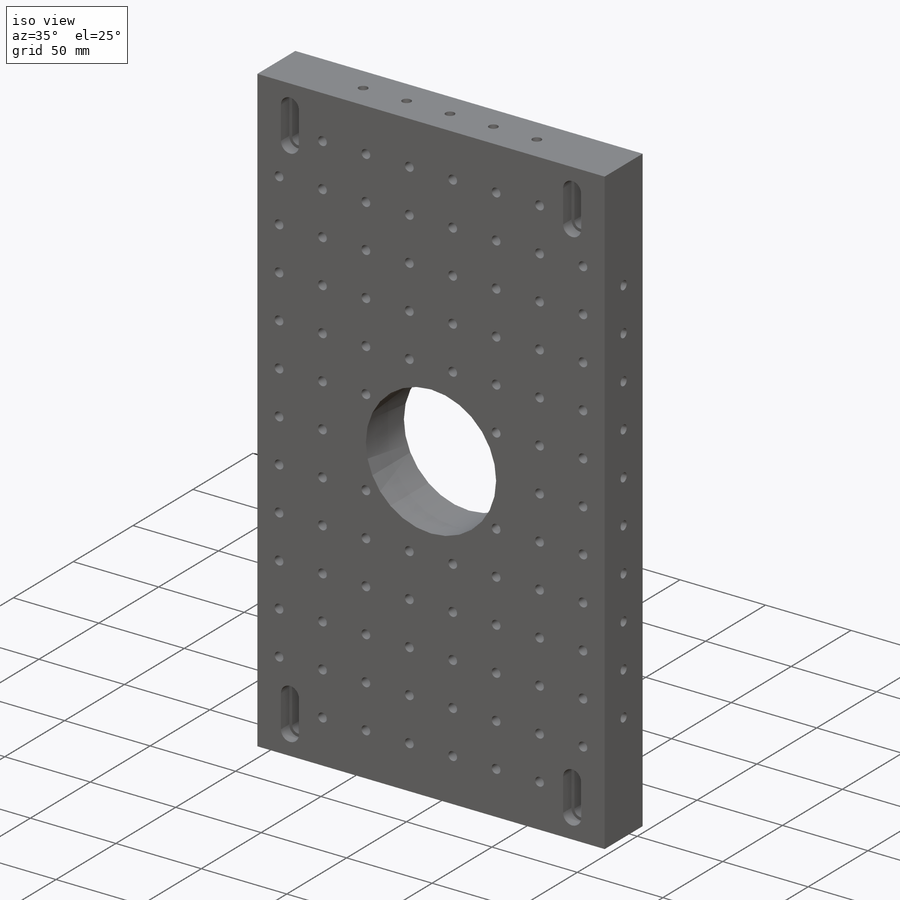
[diagram: iso view]
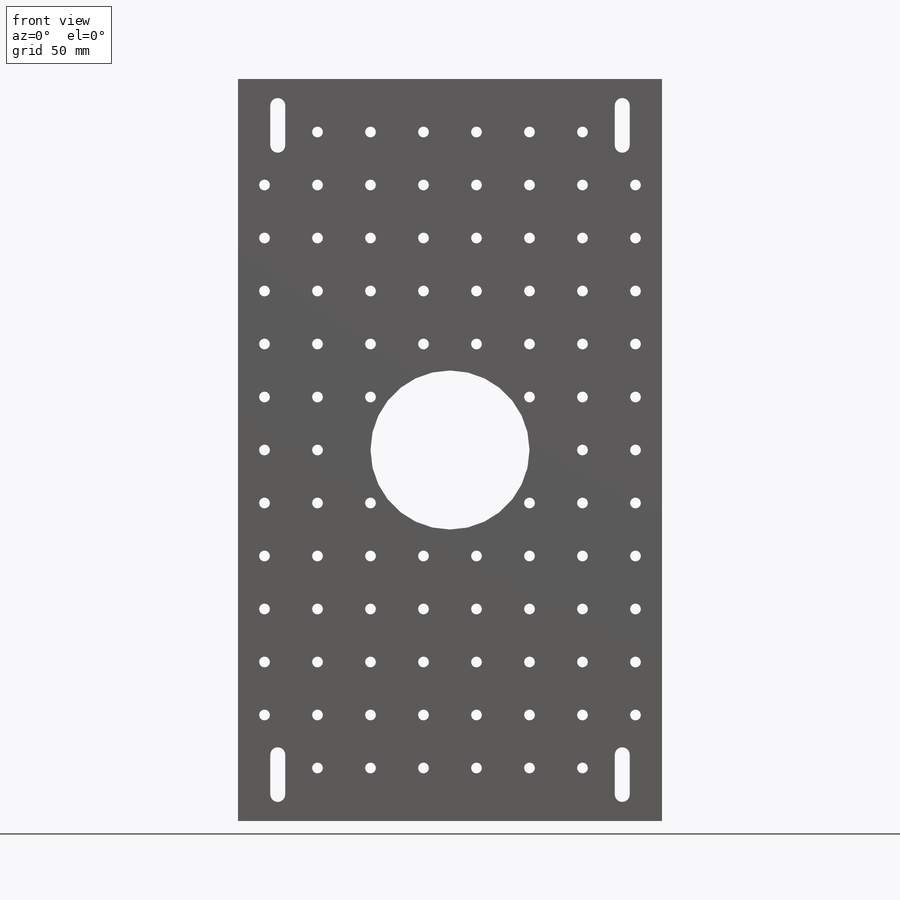
[diagram: front view]
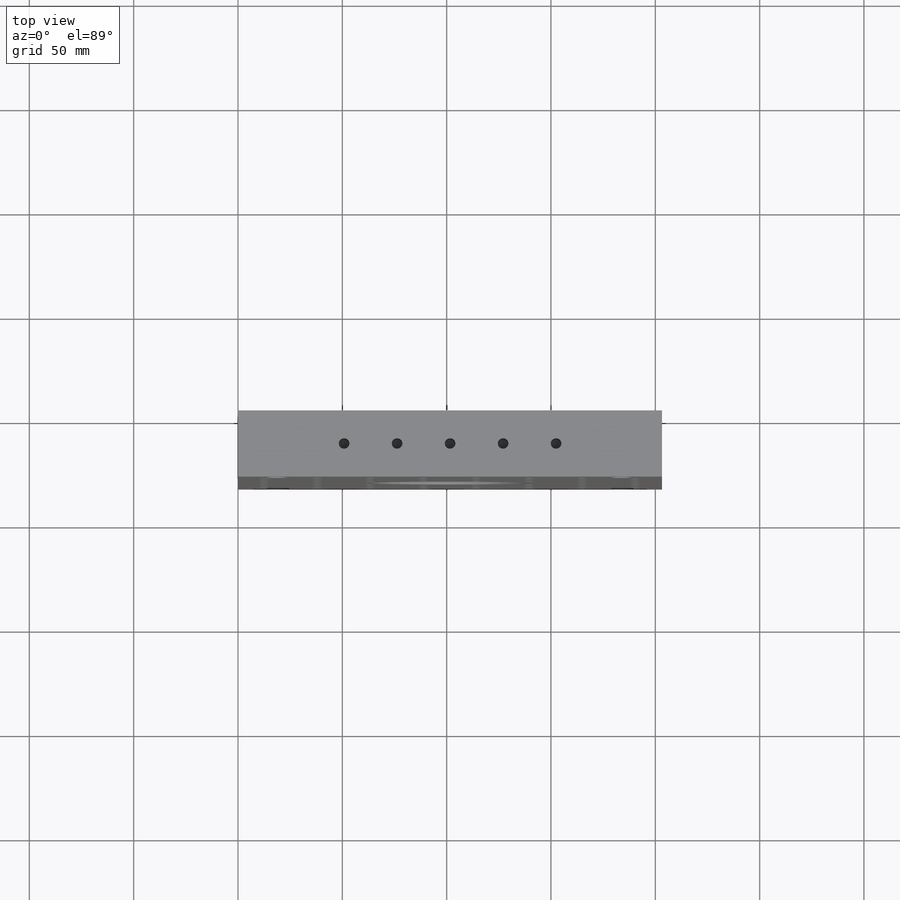
[diagram: top view]
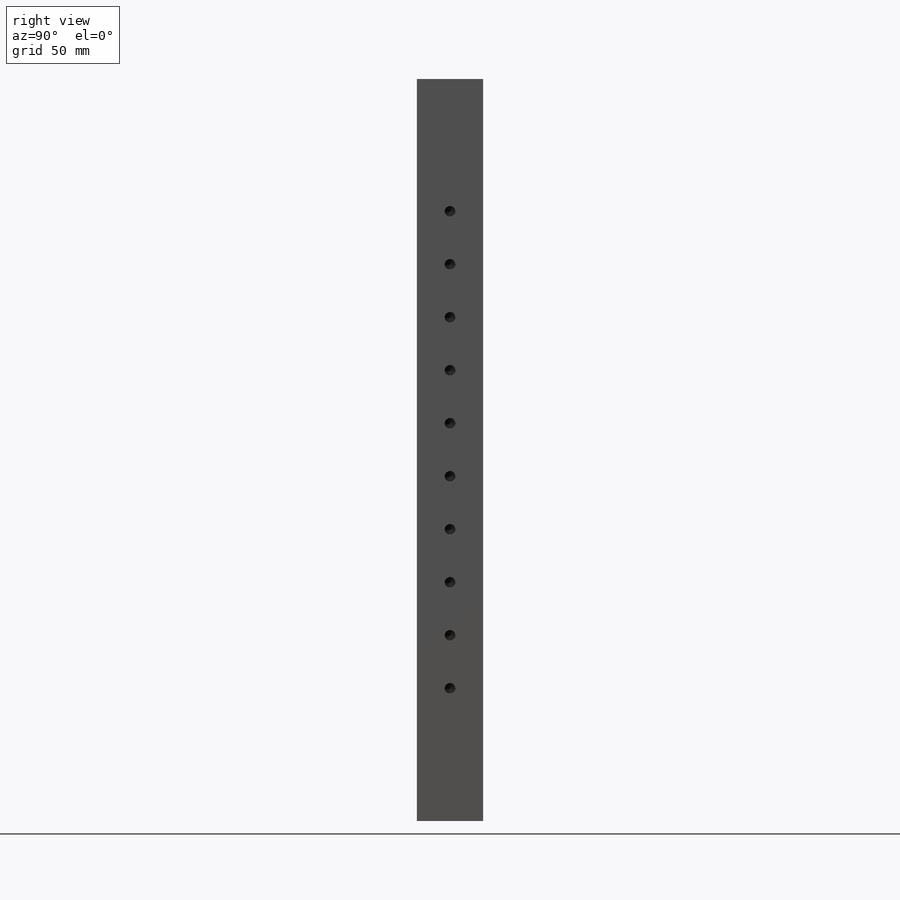
[diagram: right view]
SOLIDWORKS PART (.sldprt)
format: sldprt  version: not decoded by parser v0  size: 759,808 bytes
history: native  units: mm
features: sketch x14, pattern_linear x7, hole x5, thread x5, cut_revolve x2, material x1, extrude x1, cut_extrude x1 (+11 scaffold rows collapsed)
feature tree (47):
  scaffold x11  (default folders/planes/origin — collapsed)
  material  "Material <not specified>"
  sketch  "Sketch1"  dims[D1=25.4mm]
  extrude  "Boss-Extrude1"  Depth=31.75mm
  sketch  "Sketch2"  dims[D1=0.0mm]
  cut_extrude  "Cut-Extrude1"  Depth=19.05mm
  sketch  "Sketch4"
  cut_revolve  "Cut-Revolve3"  Angle=360deg
  sketch  "Sketch6"
  cut_revolve  "Cut-Revolve4"  Angle=360deg
  pattern_linear  "LPattern1"  Count1=2 Count2=2 Spacing1=311.15mm Spacing2=165.1mm
  hole  "1/4-20 Tapped Hole1"  Diameter=5.1054mm Depth=31.75mm
  sketch  "Sketch8"  dims[D1=12.7mm]
  sketch  "Sketch7"  dims[hole-wizard template sketch: 60 standard entries collapsed; hole parameters kept: c18.Thru Tap Drill Depth=31.75mm]
  thread  "Hole Thread1"  Diameter=6.35mm  [1 undecoded]
  pattern_linear  "LPattern2"  Count1=12 Count2=8 Spacing1=25.4mm Spacing2=25.4mm
  pattern_linear  "LPattern3"  Count1=2 Count2=8 Spacing1=25.4mm Spacing2=25.4mm
  hole  "1/4-20 Tapped Hole2"  Diameter=5.1054mm Depth=31.75mm
  sketch  "Sketch10"  dims[D1=63.5mm D2=15.875mm]
  sketch  "Sketch9"  dims[hole-wizard template sketch: 50 standard entries collapsed; hole parameters above]
  thread  "Hole Thread2"  Diameter=25.4mm  [1 undecoded]
  pattern_linear  "LPattern4"  Count1=10 Count2=1 Spacing1=25.4mm Spacing2=2.54mm
  hole  "1/4-20 Tapped Hole3"  Diameter=5.1054mm Depth=31.75mm
  sketch  "Sketch12"  dims[c1.D1=63.5mm c1.D2=15.875mm c2.D1=15.875mm c2.D2=63.5mm]
  sketch  "Sketch14"  dims[hole-wizard template sketch: 50 standard entries collapsed; hole parameters above]
  thread  "Hole Thread3"  Diameter=25.4mm  [1 undecoded]
  pattern_linear  "LPattern5"  Count1=10 Count2=1 Spacing1=25.4mm Spacing2=2.54mm
  hole  "1/4-20 Tapped Hole4"  Diameter=5.1054mm Depth=31.75mm
  sketch  "Sketch16"  dims[c1.D1=63.5mm c1.D2=15.875mm c2.D1=15.875mm c2.D2=50.8mm]
  sketch  "Sketch18"  dims[hole-wizard template sketch: 50 standard entries collapsed; hole parameters above]
  thread  "Hole Thread4"  Diameter=25.4mm  [1 undecoded]
  pattern_linear  "LPattern6"  Count1=5 Count2=1 Spacing1=25.4mm Spacing2=2.54mm
  hole  "1/4-20 Tapped Hole5"  Diameter=5.1054mm Depth=31.75mm
  sketch  "Sketch20"  dims[c1.D1=63.5mm c1.D2=15.875mm c2.D1=15.875mm c2.D2=50.8mm]
  sketch  "Sketch22"  dims[hole-wizard template sketch: 50 standard entries collapsed; hole parameters above]
  thread  "Hole Thread5"  Diameter=25.4mm  [1 undecoded]
  pattern_linear  "LPattern7"  Count1=5 Count2=1 Spacing1=25.4mm Spacing2=2.54mm
decode coverage: 33 of 35 modeling features carry decoded parameters
note: ~ marks probable driven/reference dimensions
note: 5 parameter values undecoded
summary: Diameter pulled from absorbed wizard sketch
note: suppression state not decoded; provenance and decode notes live in map.json
